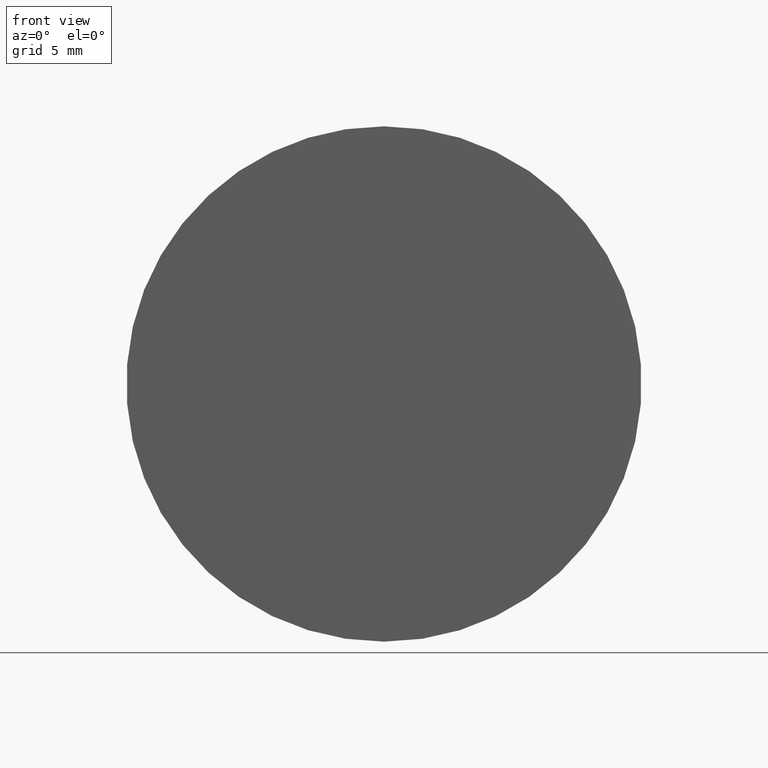
[diagram: clean part render]
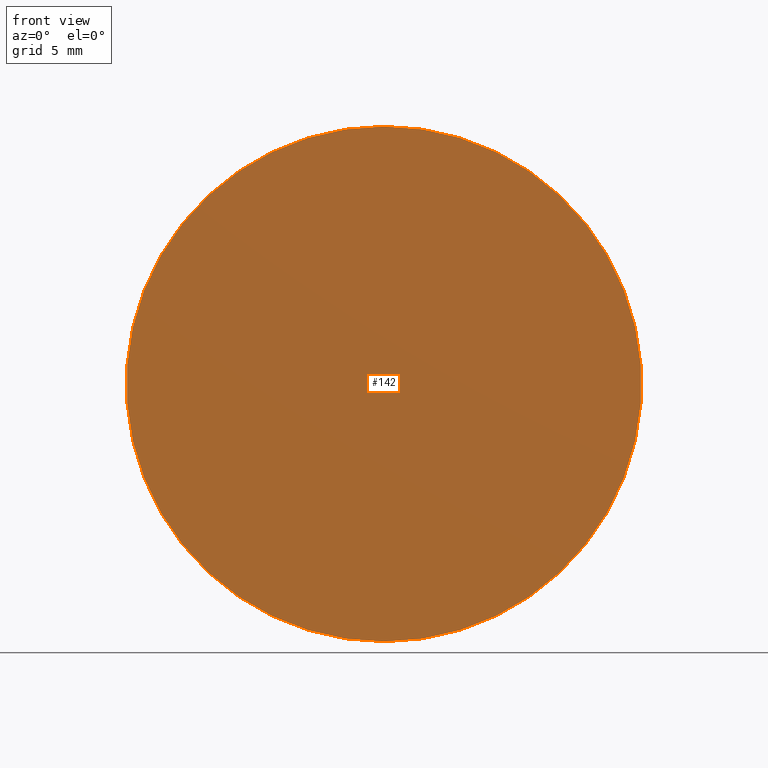
[diagram: same view with one face highlighted and labeled with its STEP entity id]
A machine part, front view. The second image highlights one B-rep face of the part: STEP entity #142.
In plain terms, the highlighted planar face has unit normal (0, -1, 0).
Its self-contained STEP definition (entity closure, byte-faithful):
#10 = CARTESIAN_POINT ( 'NONE',  ( 1.836970198721029589E-15, -1.734723475976807094E-15, -15.00000000000000000 ) ) ;
#18 = CIRCLE ( 'NONE', #170, 15.00000000000000000 ) ;
#20 = ORIENTED_EDGE ( 'NONE', *, *, #83, .F. ) ;
#28 = CARTESIAN_POINT ( 'NONE',  ( 0.000000000000000000, -1.734723475976807094E-15, 15.00000000000000000 ) ) ;
#48 = EDGE_CURVE ( 'NONE', #148, #75, #18, .T. ) ;
#56 = DIRECTION ( 'NONE',  ( -0.000000000000000000, 1.000000000000000000, -0.000000000000000000 ) ) ;
#58 = DIRECTION ( 'NONE',  ( -0.000000000000000000, 1.000000000000000000, -0.000000000000000000 ) ) ;
#64 = PLANE ( 'NONE',  #187 ) ;
#72 = EDGE_LOOP ( 'NONE', ( #198, #20 ) ) ;
#75 = VERTEX_POINT ( 'NONE', #10 ) ;
#76 = CARTESIAN_POINT ( 'NONE',  ( 0.000000000000000000, -1.734723475976807094E-15, 0.000000000000000000 ) ) ;
#79 = DIRECTION ( 'NONE',  ( 0.000000000000000000, 0.000000000000000000, 1.000000000000000000 ) ) ;
#83 = EDGE_CURVE ( 'NONE', #75, #148, #140, .T. ) ;
#94 = CARTESIAN_POINT ( 'NONE',  ( 0.000000000000000000, -9.184850993605147944E-16, 0.000000000000000000 ) ) ;
#102 = CARTESIAN_POINT ( 'NONE',  ( 0.000000000000000000, -1.734723475976807094E-15, 0.000000000000000000 ) ) ;
#140 = CIRCLE ( 'NONE', #157, 15.00000000000000000 ) ;
#142 = ADVANCED_FACE ( 'NONE', ( #178 ), #64, .T. ) ;
#148 = VERTEX_POINT ( 'NONE', #28 ) ;
#153 = DIRECTION ( 'NONE',  ( 0.000000000000000000, -1.000000000000000000, 0.000000000000000000 ) ) ;
#157 = AXIS2_PLACEMENT_3D ( 'NONE', #102, #58, #79 ) ;
#164 = DIRECTION ( 'NONE',  ( 0.000000000000000000, 0.000000000000000000, 1.000000000000000000 ) ) ;
#165 = DIRECTION ( 'NONE',  ( 0.000000000000000000, -0.000000000000000000, -1.000000000000000000 ) ) ;
#170 = AXIS2_PLACEMENT_3D ( 'NONE', #76, #56, #164 ) ;
#178 = FACE_OUTER_BOUND ( 'NONE', #72, .T. ) ;
#187 = AXIS2_PLACEMENT_3D ( 'NONE', #94, #153, #165 ) ;
#198 = ORIENTED_EDGE ( 'NONE', *, *, #48, .F. ) ;